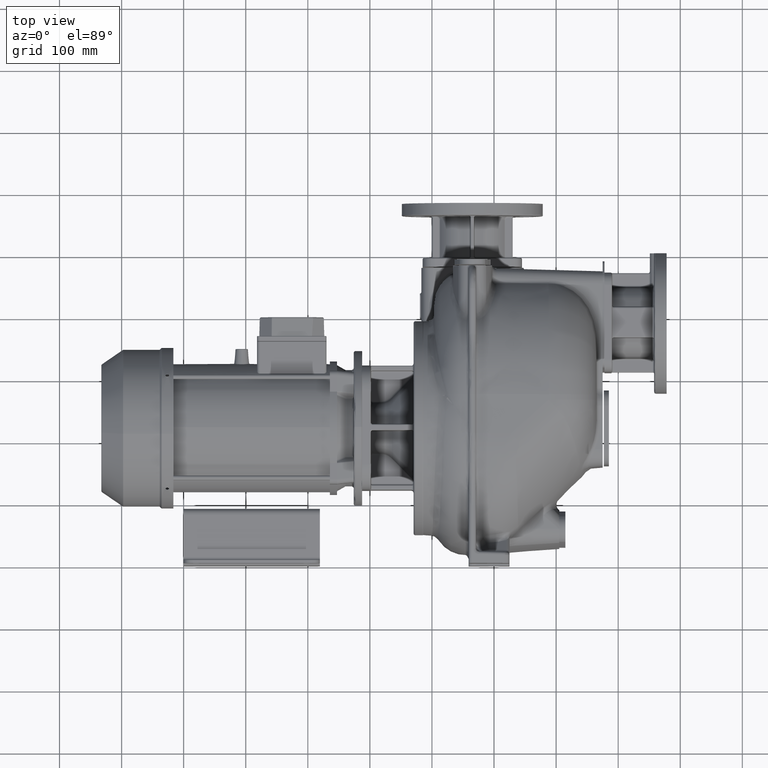
[diagram: clean part render]
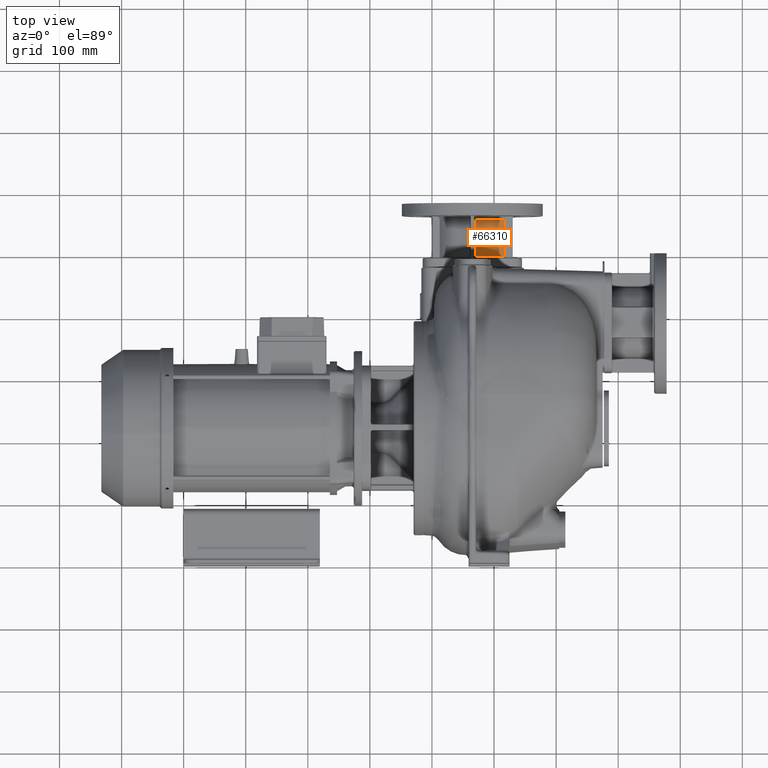
[diagram: same view with one face highlighted and labeled with its STEP entity id]
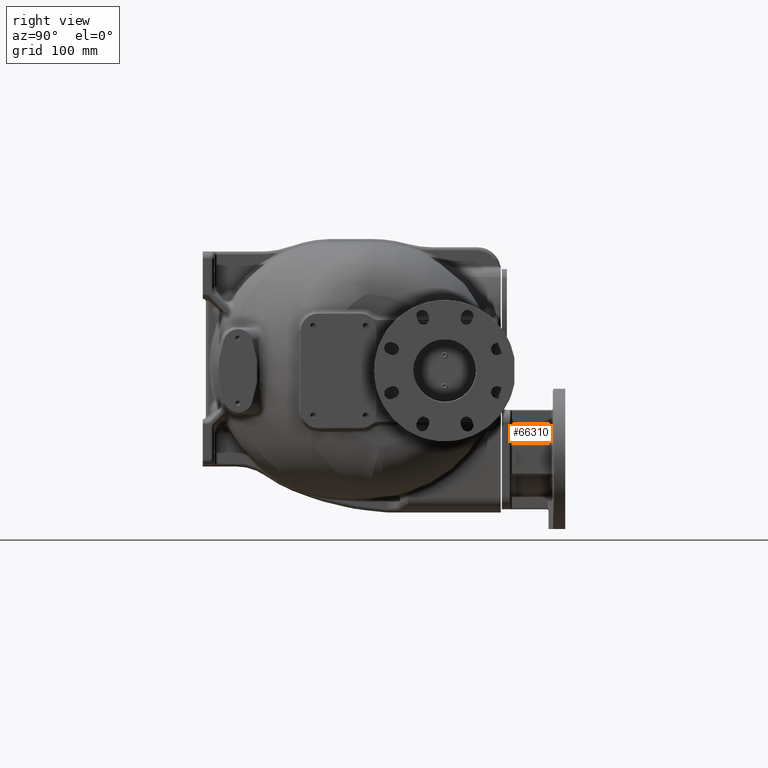
[diagram: same view with one face highlighted and labeled with its STEP entity id]
A machine part, top view. The second image highlights one B-rep face of the part: STEP entity #66310.
A second angle (right view) of the same face is appended — the face is thin or edge-on in the first view.
In plain terms, the highlighted cylindrical surface (edge-blend (fillet) strip) has radius 58 mm, axis along (0, 1, 0).
Its self-contained STEP definition (entity closure, byte-faithful):
#62968=DIRECTION('',(2.236465415886E-9,1.E0,2.262692752572E-8));
#62969=VECTOR('',#62968,5.899999999971E1);
#62970=CARTESIAN_POINT('',(-2.929508196721E1,4.990000000002E2,
-1.232812516574E2));
#62971=LINE('',#62970,#62969);
#62972=CARTESIAN_POINT('',(-3.5E1,5.58E2,-1.81E2));
#62973=DIRECTION('',(0.E0,-1.E0,0.E0));
#62974=DIRECTION('',(8.884277970386E-1,0.E0,4.590163934426E-1));
#62975=AXIS2_PLACEMENT_3D('',#62972,#62973,#62974);
#62977=DIRECTION('',(-3.617130935354E-8,-1.E0,-1.868910835552E-8));
#62978=VECTOR('',#62977,5.899999999853E1);
#62979=CARTESIAN_POINT('',(1.652881436237E1,5.579999999998E2,
-1.543770480777E2));
#62980=LINE('',#62979,#62978);
#62981=CARTESIAN_POINT('',(-3.5E1,4.99E2,-1.81E2));
#62982=DIRECTION('',(0.E0,1.E0,0.E0));
#62983=DIRECTION('',(9.836065573770E-2,0.E0,9.951508334935E-1));
#62984=AXIS2_PLACEMENT_3D('',#62981,#62982,#62983);
#64458=CARTESIAN_POINT('',(-2.929508196721E1,4.99E2,-1.232812516574E2));
#64460=VERTEX_POINT('',#64458);
#64461=CARTESIAN_POINT('',(-2.929508183526E1,5.579999999999E2,
-1.232812503224E2));
#64462=VERTEX_POINT('',#64461);
#64485=CARTESIAN_POINT('',(1.652881222824E1,5.58E2,-1.543770491803E2));
#64486=VERTEX_POINT('',#64485);
#64588=CARTESIAN_POINT('',(1.652881222824E1,4.99E2,-1.543770491803E2));
#64589=VERTEX_POINT('',#64588);
#66298=CARTESIAN_POINT('',(-3.5E1,4.79E2,-1.81E2));
#66299=DIRECTION('',(0.E0,1.E0,0.E0));
#66300=DIRECTION('',(1.E0,0.E0,0.E0));
#66301=AXIS2_PLACEMENT_3D('',#66298,#66299,#66300);
#66302=CYLINDRICAL_SURFACE('',#66301,5.8E1);
#66303=ORIENTED_EDGE('',*,*,#66290,.T.);
#66304=ORIENTED_EDGE('',*,*,#66110,.F.);
#66306=ORIENTED_EDGE('',*,*,#66305,.T.);
#66307=ORIENTED_EDGE('',*,*,#66253,.F.);
#66308=EDGE_LOOP('',(#66303,#66304,#66306,#66307));
#66309=FACE_OUTER_BOUND('',#66308,.F.);
#66310=ADVANCED_FACE('',(#66309),#66302,.T.);
#62976=CIRCLE('',#62975,5.8E1);
#62985=CIRCLE('',#62984,5.8E1);
#66110=EDGE_CURVE('',#64486,#64462,#62976,.T.);
#66253=EDGE_CURVE('',#64460,#64589,#62985,.T.);
#66290=EDGE_CURVE('',#64460,#64462,#62971,.T.);
#66305=EDGE_CURVE('',#64486,#64589,#62980,.T.);